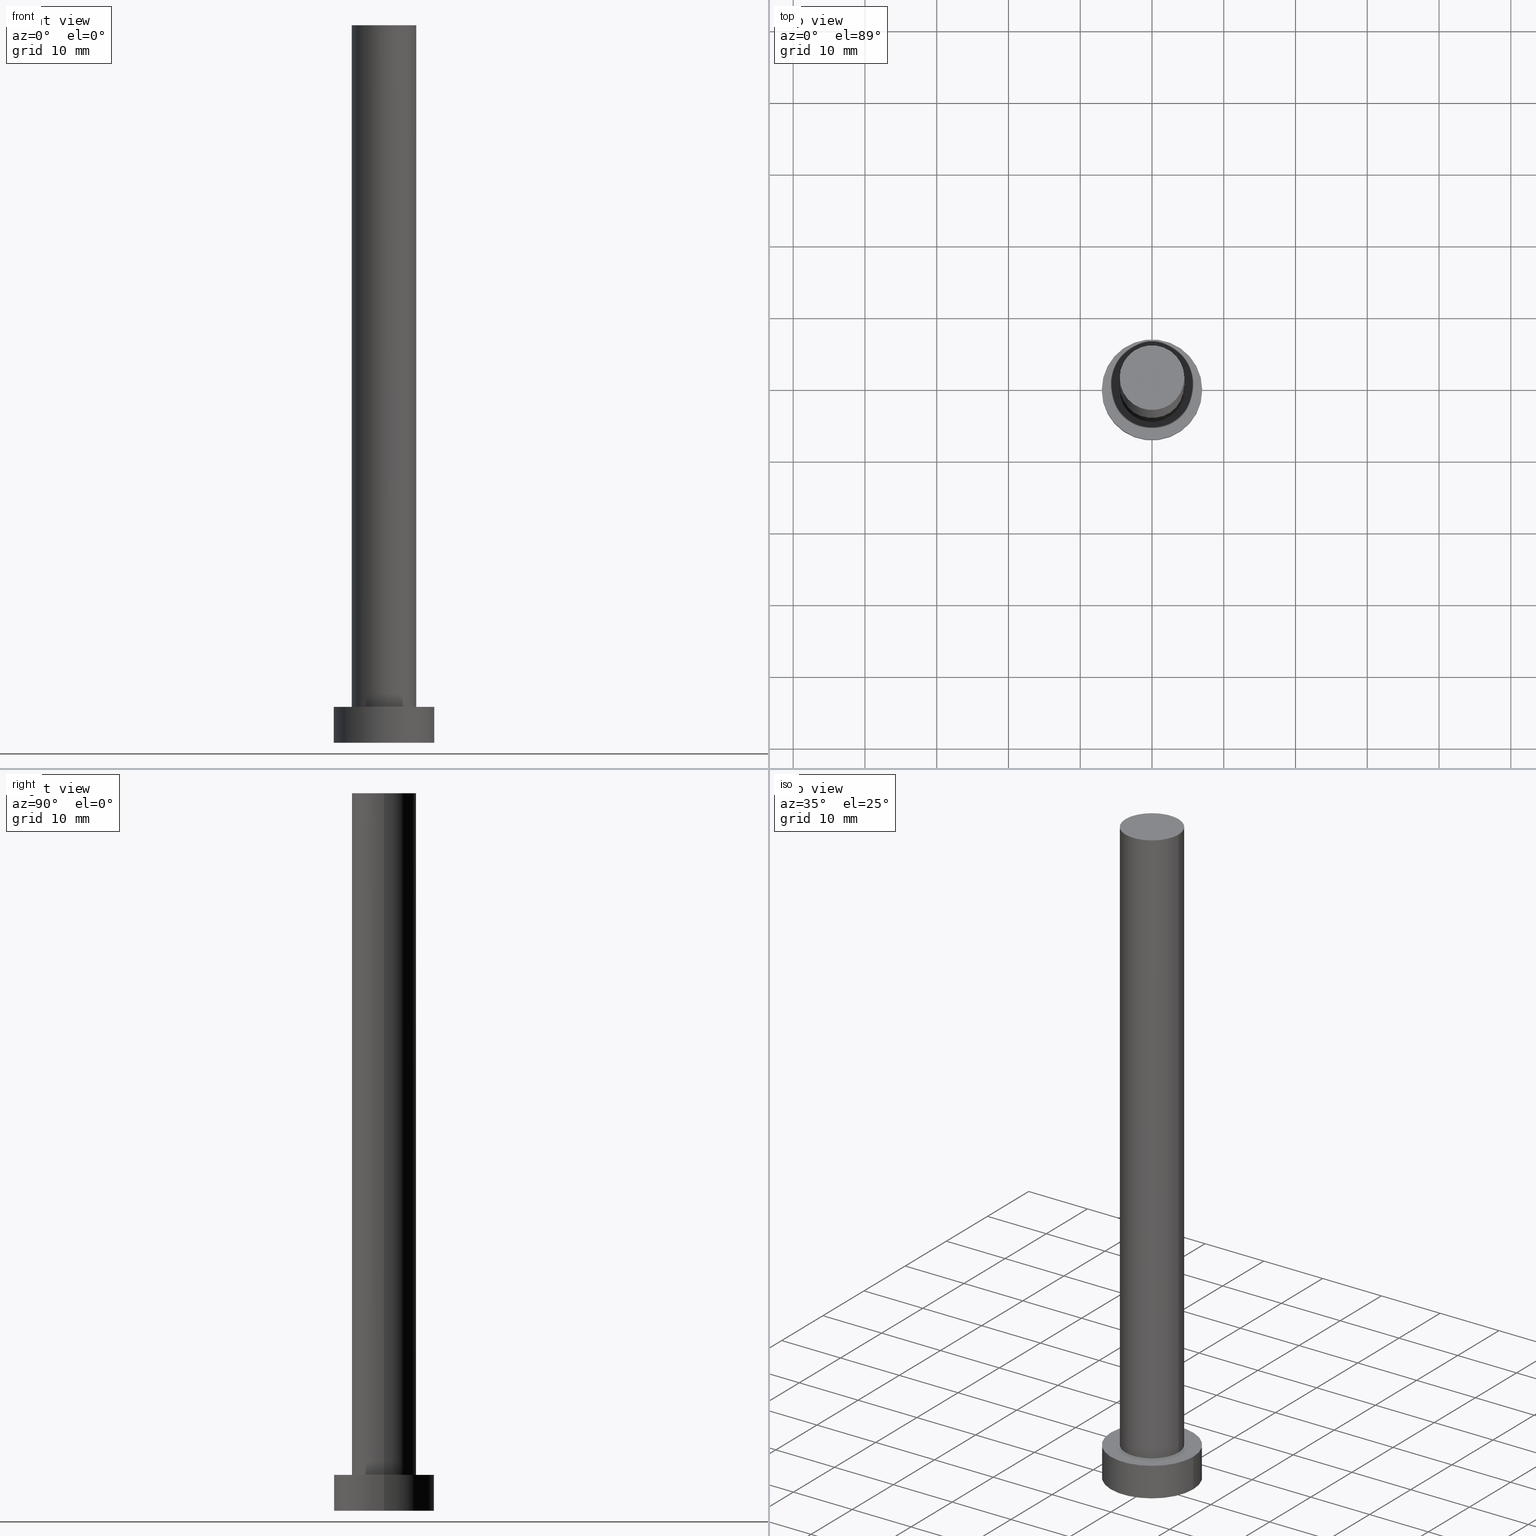
[diagram: canonical four-view strip — front | top / right | iso, engineering-drawing reading convention]
A machine part, canonical four-view strip (front | top / right | iso — engineering-drawing reading convention). The complete STEP part file that produces these views, byte-faithful:
ISO-10303-21;
HEADER;
FILE_DESCRIPTION (( 'STEP AP203' ),
    '1' );
FILE_NAME ('2dca.STEP',
    '2023-02-12T11:36:28',
    ( '' ),
    ( '' ),
    'SwSTEP 2.0',
    'SolidWorks 2019',
    '' );
FILE_SCHEMA (( 'CONFIG_CONTROL_DESIGN' ));
ENDSEC;

DATA;
#1 = APPLICATION_PROTOCOL_DEFINITION ( 'international standard', 'config_control_design', 1994, #168 ) ;
#2 = VERTEX_POINT ( 'NONE', #66 ) ;
#3 = APPLICATION_PROTOCOL_DEFINITION ( 'international standard', 'config_control_design', 1994, #189 ) ;
#4 = ORIENTED_EDGE ( 'NONE', *, *, #60, .T. ) ;
#5 = ORIENTED_EDGE ( 'NONE', *, *, #201, .F. ) ;
#6 = VERTEX_POINT ( 'NONE', #154 ) ;
#7 = DIRECTION ( 'NONE',  ( -0.000000000000000000, -0.000000000000000000, -1.000000000000000000 ) ) ;
#8 = ORIENTED_EDGE ( 'NONE', *, *, #60, .F. ) ;
#9 = CARTESIAN_POINT ( 'NONE',  ( -7.000000000000000000, 0.000000000000000000, 5.000000000000000000 ) ) ;
#10 = LOCAL_TIME ( 12, 36, 28.00000000000000000, #27 ) ;
#11 = APPROVAL_STATUS ( 'not_yet_approved' ) ;
#12 = MANIFOLD_SOLID_BREP ( 'P�idat vysunut�m3', #167 ) ;
#13 = PERSON_AND_ORGANIZATION_ROLE ( 'creator' ) ;
#14 = ORIENTED_EDGE ( 'NONE', *, *, #176, .F. ) ;
#15 = CARTESIAN_POINT ( 'NONE',  ( 7.000000000000000000, 8.572527594031473190E-16, 5.000000000000000000 ) ) ;
#16 = PERSON_AND_ORGANIZATION ( #19, #205 ) ;
#17 = ORIENTED_EDGE ( 'NONE', *, *, #106, .T. ) ;
#18 = CC_DESIGN_PERSON_AND_ORGANIZATION_ASSIGNMENT ( #93, #113, ( #67 ) ) ;
#19 = PERSON ( 'NEUR�EN�', 'NEUR�EN�', 'NEUR�EN�', ('NEUR�EN�'), ('NEUR�EN�'), ('NEUR�EN�') ) ;
#20 = ORIENTED_EDGE ( 'NONE', *, *, #254, .T. ) ;
#21 = CC_DESIGN_DATE_AND_TIME_ASSIGNMENT ( #212, #155, ( #152 ) ) ;
#22 = DIRECTION ( 'NONE',  ( 0.000000000000000000, 0.000000000000000000, 1.000000000000000000 ) ) ;
#23 = LOCAL_TIME ( 12, 36, 28.00000000000000000, #231 ) ;
#24 = CARTESIAN_POINT ( 'NONE',  ( 0.000000000000000000, 0.000000000000000000, 100.0000000000000000 ) ) ;
#25 = DIRECTION ( 'NONE',  ( 0.000000000000000000, 0.000000000000000000, 1.000000000000000000 ) ) ;
#26 = AXIS2_PLACEMENT_3D ( 'NONE', #56, #95, #28 ) ;
#27 = COORDINATED_UNIVERSAL_TIME_OFFSET ( 1, 0, .AHEAD. ) ;
#28 = DIRECTION ( 'NONE',  ( 1.000000000000000000, 0.000000000000000000, -0.000000000000000000 ) ) ;
#29 =( LENGTH_UNIT ( ) NAMED_UNIT ( * ) SI_UNIT ( .MILLI., .METRE. ) );
#30 = AXIS2_PLACEMENT_3D ( 'NONE', #59, #210, #248 ) ;
#31 = CYLINDRICAL_SURFACE ( 'NONE', #151, 4.500000000000000888 ) ;
#32 = CC_DESIGN_APPROVAL ( #139, ( #190 ) ) ;
#33 = ADVANCED_FACE ( 'NONE', ( #175 ), #226, .T. ) ;
#34 = DATE_AND_TIME ( #92, #10 ) ;
#35 = PERSON_AND_ORGANIZATION ( #19, #205 ) ;
#36 = DIRECTION ( 'NONE',  ( 0.000000000000000000, 0.000000000000000000, 1.000000000000000000 ) ) ;
#37 = FACE_OUTER_BOUND ( 'NONE', #219, .T. ) ;
#38 = VECTOR ( 'NONE', #121, 1000.000000000000000 ) ;
#39 = LINE ( 'NONE', #196, #213 ) ;
#40 = DIRECTION ( 'NONE',  ( -0.000000000000000000, -0.000000000000000000, -1.000000000000000000 ) ) ;
#41 = CIRCLE ( 'NONE', #193, 4.500000000000000888 ) ;
#42 = CC_DESIGN_SECURITY_CLASSIFICATION ( #67, ( #190 ) ) ;
#43 = DIRECTION ( 'NONE',  ( -0.000000000000000000, -0.000000000000000000, -1.000000000000000000 ) ) ;
#44 = CARTESIAN_POINT ( 'NONE',  ( 4.500000000000000888, 5.510910596163089556E-16, 100.0000000000000000 ) ) ;
#45 = CALENDAR_DATE ( 2023, 12, 2 ) ;
#46 = CARTESIAN_POINT ( 'NONE',  ( 4.500000000000000888, 5.510910596163089556E-16, 100.0000000000000000 ) ) ;
#47 = ADVANCED_BREP_SHAPE_REPRESENTATION ( '2dca', ( #12, #153 ), #123 ) ;
#48 = ORIENTED_EDGE ( 'NONE', *, *, #129, .F. ) ;
#49 = CARTESIAN_POINT ( 'NONE',  ( 0.000000000000000000, 0.000000000000000000, 5.000000000000000000 ) ) ;
#50 = AXIS2_PLACEMENT_3D ( 'NONE', #247, #36, #250 ) ;
#51 = CARTESIAN_POINT ( 'NONE',  ( -4.500000000000000888, 0.000000000000000000, 5.000000000000000000 ) ) ;
#52 = CIRCLE ( 'NONE', #220, 4.500000000000000888 ) ;
#53 = FACE_OUTER_BOUND ( 'NONE', #215, .T. ) ;
#54 = SHAPE_DEFINITION_REPRESENTATION ( #83, #47 ) ;
#55 = CC_DESIGN_PERSON_AND_ORGANIZATION_ASSIGNMENT ( #130, #128, ( #190 ) ) ;
#56 = CARTESIAN_POINT ( 'NONE',  ( 0.000000000000000000, 0.000000000000000000, 0.000000000000000000 ) ) ;
#57 = CARTESIAN_POINT ( 'NONE',  ( 0.000000000000000000, 0.000000000000000000, 5.000000000000000000 ) ) ;
#58 = VERTEX_POINT ( 'NONE', #15 ) ;
#59 = CARTESIAN_POINT ( 'NONE',  ( 0.000000000000000000, 0.000000000000000000, 100.0000000000000000 ) ) ;
#60 = EDGE_CURVE ( 'NONE', #6, #2, #160, .T. ) ;
#61 = AXIS2_PLACEMENT_3D ( 'NONE', #187, #157, #70 ) ;
#62 = CARTESIAN_POINT ( 'NONE',  ( -4.500000000000000888, 0.000000000000000000, 100.0000000000000000 ) ) ;
#63 = LINE ( 'NONE', #208, #144 ) ;
#64 = CC_DESIGN_PERSON_AND_ORGANIZATION_ASSIGNMENT ( #162, #13, ( #152 ) ) ;
#65 = AXIS2_PLACEMENT_3D ( 'NONE', #49, #222, #218 ) ;
#66 = CARTESIAN_POINT ( 'NONE',  ( 7.000000000000000000, 8.572527594031473190E-16, 0.000000000000000000 ) ) ;
#67 = SECURITY_CLASSIFICATION ( '', '', #94 ) ;
#68 = ORIENTED_EDGE ( 'NONE', *, *, #159, .T. ) ;
#69 = AXIS2_PLACEMENT_3D ( 'NONE', #91, #25, #127 ) ;
#70 = DIRECTION ( 'NONE',  ( 1.000000000000000000, 0.000000000000000000, -0.000000000000000000 ) ) ;
#71 = ORIENTED_EDGE ( 'NONE', *, *, #228, .F. ) ;
#72 = FACE_BOUND ( 'NONE', #182, .T. ) ;
#73 = CC_DESIGN_DATE_AND_TIME_ASSIGNMENT ( #221, #203, ( #67 ) ) ;
#74 = VECTOR ( 'NONE', #111, 1000.000000000000000 ) ;
#75 = CYLINDRICAL_SURFACE ( 'NONE', #87, 4.500000000000000888 ) ;
#76 = COORDINATED_UNIVERSAL_TIME_OFFSET ( 1, 0, .AHEAD. ) ;
#77 = EDGE_CURVE ( 'NONE', #58, #2, #63, .T. ) ;
#78 = APPROVAL_DATE_TIME ( #126, #100 ) ;
#79 = PERSON_AND_ORGANIZATION ( #19, #205 ) ;
#80 =( NAMED_UNIT ( * ) PLANE_ANGLE_UNIT ( ) SI_UNIT ( $, .RADIAN. ) );
#81 = CIRCLE ( 'NONE', #65, 7.000000000000000000 ) ;
#82 = CC_DESIGN_PERSON_AND_ORGANIZATION_ASSIGNMENT ( #79, #243, ( #190 ) ) ;
#83 = PRODUCT_DEFINITION_SHAPE ( 'NONE', 'NONE',  #152 ) ;
#84 = ADVANCED_FACE ( 'NONE', ( #37 ), #31, .T. ) ;
#85 = DIRECTION ( 'NONE',  ( 0.000000000000000000, 0.000000000000000000, 1.000000000000000000 ) ) ;
#86 = COORDINATED_UNIVERSAL_TIME_OFFSET ( 1, 0, .AHEAD. ) ;
#87 = AXIS2_PLACEMENT_3D ( 'NONE', #165, #7, #96 ) ;
#88 = APPROVAL_DATE_TIME ( #34, #125 ) ;
#89 = FACE_OUTER_BOUND ( 'NONE', #135, .T. ) ;
#90 = DIRECTION ( 'NONE',  ( 1.000000000000000000, 0.000000000000000000, 0.000000000000000000 ) ) ;
#91 = CARTESIAN_POINT ( 'NONE',  ( 0.000000000000000000, 0.000000000000000000, 5.000000000000000000 ) ) ;
#92 = CALENDAR_DATE ( 2023, 12, 2 ) ;
#93 = PERSON_AND_ORGANIZATION ( #19, #205 ) ;
#94 = SECURITY_CLASSIFICATION_LEVEL ( 'unclassified' ) ;
#95 = DIRECTION ( 'NONE',  ( 0.000000000000000000, 0.000000000000000000, 1.000000000000000000 ) ) ;
#96 = DIRECTION ( 'NONE',  ( -1.000000000000000000, 0.000000000000000000, 0.000000000000000000 ) ) ;
#97 = PERSON_AND_ORGANIZATION ( #19, #205 ) ;
#98 = CIRCLE ( 'NONE', #69, 7.000000000000000000 ) ;
#99 = CALENDAR_DATE ( 2023, 12, 2 ) ;
#100 = APPROVAL ( #148, 'NEUR�EN�' ) ;
#101 = APPROVAL_PERSON_ORGANIZATION ( #141, #100, #164 ) ;
#102 = ORIENTED_EDGE ( 'NONE', *, *, #159, .F. ) ;
#103 = EDGE_LOOP ( 'NONE', ( #138, #114, #143, #170 ) ) ;
#104 = DIRECTION ( 'NONE',  ( 1.000000000000000000, 0.000000000000000000, 0.000000000000000000 ) ) ;
#105 = DIRECTION ( 'NONE',  ( 1.000000000000000000, 0.000000000000000000, 0.000000000000000000 ) ) ;
#106 = EDGE_CURVE ( 'NONE', #183, #6, #209, .T. ) ;
#107 = AXIS2_PLACEMENT_3D ( 'NONE', #202, #186, #110 ) ;
#108 = DIRECTION ( 'NONE',  ( 0.000000000000000000, 0.000000000000000000, 1.000000000000000000 ) ) ;
#109 = PLANE ( 'NONE',  #61 ) ;
#110 = DIRECTION ( 'NONE',  ( -1.000000000000000000, 0.000000000000000000, 0.000000000000000000 ) ) ;
#111 = DIRECTION ( 'NONE',  ( -0.000000000000000000, -0.000000000000000000, -1.000000000000000000 ) ) ;
#112 = EDGE_LOOP ( 'NONE', ( #198, #158 ) ) ;
#113 = PERSON_AND_ORGANIZATION_ROLE ( 'classification_officer' ) ;
#114 = ORIENTED_EDGE ( 'NONE', *, *, #254, .F. ) ;
#115 = LOCAL_TIME ( 12, 36, 28.00000000000000000, #235 ) ;
#116 = DESIGN_CONTEXT ( 'detailed design', #168, 'design' ) ;
#117 = ADVANCED_FACE ( 'NONE', ( #53 ), #223, .F. ) ;
#118 = DIRECTION ( 'NONE',  ( 1.000000000000000000, 0.000000000000000000, 0.000000000000000000 ) ) ;
#119 = ADVANCED_FACE ( 'NONE', ( #242 ), #241, .T. ) ;
#120 = AXIS2_PLACEMENT_3D ( 'NONE', #197, #22, #105 ) ;
#121 = DIRECTION ( 'NONE',  ( -0.000000000000000000, -0.000000000000000000, -1.000000000000000000 ) ) ;
#122 = EDGE_LOOP ( 'NONE', ( #20, #68 ) ) ;
#123 =( GEOMETRIC_REPRESENTATION_CONTEXT ( 3 ) GLOBAL_UNCERTAINTY_ASSIGNED_CONTEXT ( ( #244 ) ) GLOBAL_UNIT_ASSIGNED_CONTEXT ( ( #29, #80, #224 ) ) REPRESENTATION_CONTEXT ( 'NONE', 'WORKASPACE' ) );
#124 = ORIENTED_EDGE ( 'NONE', *, *, #129, .T. ) ;
#125 = APPROVAL ( #11, 'NEUR�EN�' ) ;
#126 = DATE_AND_TIME ( #171, #115 ) ;
#127 = DIRECTION ( 'NONE',  ( 1.000000000000000000, 0.000000000000000000, 0.000000000000000000 ) ) ;
#128 = PERSON_AND_ORGANIZATION_ROLE ( 'design_supplier' ) ;
#129 = EDGE_CURVE ( 'NONE', #240, #253, #41, .T. ) ;
#130 = PERSON_AND_ORGANIZATION ( #19, #205 ) ;
#131 = CARTESIAN_POINT ( 'NONE',  ( 0.000000000000000000, 0.000000000000000000, 0.000000000000000000 ) ) ;
#132 = PERSON_AND_ORGANIZATION_ROLE ( 'design_owner' ) ;
#133 = APPROVAL_PERSON_ORGANIZATION ( #35, #139, #249 ) ;
#134 = DIRECTION ( 'NONE',  ( -1.000000000000000000, 0.000000000000000000, 0.000000000000000000 ) ) ;
#135 = EDGE_LOOP ( 'NONE', ( #71, #246, #156, #252 ) ) ;
#136 = DIRECTION ( 'NONE',  ( -0.000000000000000000, -0.000000000000000000, -1.000000000000000000 ) ) ;
#137 = CIRCLE ( 'NONE', #50, 4.500000000000000888 ) ;
#138 = ORIENTED_EDGE ( 'NONE', *, *, #191, .F. ) ;
#139 = APPROVAL ( #180, 'NEUR�EN�' ) ;
#140 = ORIENTED_EDGE ( 'NONE', *, *, #191, .T. ) ;
#141 = PERSON_AND_ORGANIZATION ( #19, #205 ) ;
#142 = FACE_OUTER_BOUND ( 'NONE', #103, .T. ) ;
#143 = ORIENTED_EDGE ( 'NONE', *, *, #166, .T. ) ;
#144 = VECTOR ( 'NONE', #136, 1000.000000000000000 ) ;
#145 = CIRCLE ( 'NONE', #217, 7.000000000000000000 ) ;
#146 = CALENDAR_DATE ( 2023, 12, 2 ) ;
#147 = VERTEX_POINT ( 'NONE', #62 ) ;
#148 = APPROVAL_STATUS ( 'not_yet_approved' ) ;
#149 = DATE_AND_TIME ( #45, #194 ) ;
#150 = CARTESIAN_POINT ( 'NONE',  ( 0.000000000000000000, 0.000000000000000000, 100.0000000000000000 ) ) ;
#151 = AXIS2_PLACEMENT_3D ( 'NONE', #150, #227, #134 ) ;
#152 = PRODUCT_DEFINITION ( 'NEZN�M�', '', #190, #116 ) ;
#153 = AXIS2_PLACEMENT_3D ( 'NONE', #188, #108, #90 ) ;
#154 = CARTESIAN_POINT ( 'NONE',  ( -7.000000000000000000, 0.000000000000000000, 0.000000000000000000 ) ) ;
#155 = DATE_TIME_ROLE ( 'creation_date' ) ;
#156 = ORIENTED_EDGE ( 'NONE', *, *, #201, .T. ) ;
#157 = DIRECTION ( 'NONE',  ( 0.000000000000000000, 0.000000000000000000, 1.000000000000000000 ) ) ;
#158 = ORIENTED_EDGE ( 'NONE', *, *, #228, .T. ) ;
#159 = EDGE_CURVE ( 'NONE', #179, #147, #137, .T. ) ;
#160 = CIRCLE ( 'NONE', #195, 7.000000000000000000 ) ;
#161 = LOCAL_TIME ( 12, 36, 28.00000000000000000, #76 ) ;
#162 = PERSON_AND_ORGANIZATION ( #19, #205 ) ;
#163 = CARTESIAN_POINT ( 'NONE',  ( -7.000000000000000000, 0.000000000000000000, 5.000000000000000000 ) ) ;
#164 = APPROVAL_ROLE ( '' ) ;
#165 = CARTESIAN_POINT ( 'NONE',  ( 0.000000000000000000, 0.000000000000000000, 100.0000000000000000 ) ) ;
#166 = EDGE_CURVE ( 'NONE', #147, #253, #39, .T. ) ;
#167 = CLOSED_SHELL ( 'NONE', ( #84, #172, #119, #216, #117, #239, #33 ) ) ;
#168 = APPLICATION_CONTEXT ( 'configuration controlled 3d designs of mechanical parts and assemblies' ) ;
#169 = DIRECTION ( 'NONE',  ( 1.000000000000000000, 0.000000000000000000, 0.000000000000000000 ) ) ;
#170 = ORIENTED_EDGE ( 'NONE', *, *, #181, .T. ) ;
#171 = CALENDAR_DATE ( 2023, 12, 2 ) ;
#172 = ADVANCED_FACE ( 'NONE', ( #89 ), #255, .T. ) ;
#173 = APPROVAL_DATE_TIME ( #149, #139 ) ;
#174 = DIRECTION ( 'NONE',  ( -1.000000000000000000, 0.000000000000000000, 0.000000000000000000 ) ) ;
#175 = FACE_OUTER_BOUND ( 'NONE', #122, .T. ) ;
#176 = EDGE_CURVE ( 'NONE', #183, #58, #81, .T. ) ;
#177 = CARTESIAN_POINT ( 'NONE',  ( 0.000000000000000000, 0.000000000000000000, 5.000000000000000000 ) ) ;
#178 = APPROVAL_PERSON_ORGANIZATION ( #97, #125, #192 ) ;
#179 = VERTEX_POINT ( 'NONE', #44 ) ;
#180 = APPROVAL_STATUS ( 'not_yet_approved' ) ;
#181 = EDGE_CURVE ( 'NONE', #253, #240, #230, .T. ) ;
#182 = EDGE_LOOP ( 'NONE', ( #236, #48 ) ) ;
#183 = VERTEX_POINT ( 'NONE', #163 ) ;
#184 = FACE_OUTER_BOUND ( 'NONE', #112, .T. ) ;
#185 = CC_DESIGN_APPROVAL ( #125, ( #152 ) ) ;
#186 = DIRECTION ( 'NONE',  ( -0.000000000000000000, -0.000000000000000000, -1.000000000000000000 ) ) ;
#187 = CARTESIAN_POINT ( 'NONE',  ( 0.000000000000000000, 0.000000000000000000, 5.000000000000000000 ) ) ;
#188 = CARTESIAN_POINT ( 'NONE',  ( 0.000000000000000000, 0.000000000000000000, 0.000000000000000000 ) ) ;
#189 = APPLICATION_CONTEXT ( 'configuration controlled 3d designs of mechanical parts and assemblies' ) ;
#190 = PRODUCT_DEFINITION_FORMATION_WITH_SPECIFIED_SOURCE ( 'LIBOVOLN�', '', #251, .NOT_KNOWN. ) ;
#191 = EDGE_CURVE ( 'NONE', #179, #240, #233, .T. ) ;
#192 = APPROVAL_ROLE ( '' ) ;
#193 = AXIS2_PLACEMENT_3D ( 'NONE', #177, #214, #118 ) ;
#194 = LOCAL_TIME ( 12, 36, 28.00000000000000000, #86 ) ;
#195 = AXIS2_PLACEMENT_3D ( 'NONE', #131, #85, #229 ) ;
#196 = CARTESIAN_POINT ( 'NONE',  ( -4.500000000000000888, 0.000000000000000000, 100.0000000000000000 ) ) ;
#197 = CARTESIAN_POINT ( 'NONE',  ( 0.000000000000000000, 0.000000000000000000, 5.000000000000000000 ) ) ;
#198 = ORIENTED_EDGE ( 'NONE', *, *, #176, .T. ) ;
#199 = DIRECTION ( 'NONE',  ( 0.000000000000000000, 0.000000000000000000, 1.000000000000000000 ) ) ;
#200 = DIRECTION ( 'NONE',  ( 0.000000000000000000, 0.000000000000000000, 1.000000000000000000 ) ) ;
#201 = EDGE_CURVE ( 'NONE', #2, #6, #145, .T. ) ;
#202 = CARTESIAN_POINT ( 'NONE',  ( 0.000000000000000000, 0.000000000000000000, 5.000000000000000000 ) ) ;
#203 = DATE_TIME_ROLE ( 'classification_date' ) ;
#204 = AXIS2_PLACEMENT_3D ( 'NONE', #57, #40, #174 ) ;
#205 = ORGANIZATION ( 'NEUR�EN�', 'NEUR�EN�', '' ) ;
#206 = CARTESIAN_POINT ( 'NONE',  ( 4.500000000000000888, 5.510910596163089556E-16, 5.000000000000000000 ) ) ;
#207 = CC_DESIGN_PERSON_AND_ORGANIZATION_ASSIGNMENT ( #16, #132, ( #251 ) ) ;
#208 = CARTESIAN_POINT ( 'NONE',  ( 7.000000000000000000, 8.572527594031473190E-16, 5.000000000000000000 ) ) ;
#209 = LINE ( 'NONE', #9, #74 ) ;
#210 = DIRECTION ( 'NONE',  ( 0.000000000000000000, 0.000000000000000000, 1.000000000000000000 ) ) ;
#211 = PRODUCT_RELATED_PRODUCT_CATEGORY ( 'detail', '', ( #251 ) ) ;
#212 = DATE_AND_TIME ( #99, #23 ) ;
#213 = VECTOR ( 'NONE', #43, 1000.000000000000000 ) ;
#214 = DIRECTION ( 'NONE',  ( 0.000000000000000000, 0.000000000000000000, 1.000000000000000000 ) ) ;
#215 = EDGE_LOOP ( 'NONE', ( #8, #5 ) ) ;
#216 = ADVANCED_FACE ( 'NONE', ( #72, #184 ), #109, .T. ) ;
#217 = AXIS2_PLACEMENT_3D ( 'NONE', #237, #199, #104 ) ;
#218 = DIRECTION ( 'NONE',  ( 1.000000000000000000, 0.000000000000000000, 0.000000000000000000 ) ) ;
#219 = EDGE_LOOP ( 'NONE', ( #102, #140, #124, #238 ) ) ;
#220 = AXIS2_PLACEMENT_3D ( 'NONE', #24, #200, #169 ) ;
#221 = DATE_AND_TIME ( #146, #161 ) ;
#222 = DIRECTION ( 'NONE',  ( 0.000000000000000000, 0.000000000000000000, 1.000000000000000000 ) ) ;
#223 = PLANE ( 'NONE',  #26 ) ;
#224 =( NAMED_UNIT ( * ) SI_UNIT ( $, .STERADIAN. ) SOLID_ANGLE_UNIT ( ) );
#225 = ORIENTED_EDGE ( 'NONE', *, *, #77, .F. ) ;
#226 = PLANE ( 'NONE',  #30 ) ;
#227 = DIRECTION ( 'NONE',  ( -0.000000000000000000, -0.000000000000000000, -1.000000000000000000 ) ) ;
#228 = EDGE_CURVE ( 'NONE', #58, #183, #98, .T. ) ;
#229 = DIRECTION ( 'NONE',  ( 1.000000000000000000, 0.000000000000000000, 0.000000000000000000 ) ) ;
#230 = CIRCLE ( 'NONE', #120, 4.500000000000000888 ) ;
#231 = COORDINATED_UNIVERSAL_TIME_OFFSET ( 1, 0, .AHEAD. ) ;
#232 = CC_DESIGN_APPROVAL ( #100, ( #67 ) ) ;
#233 = LINE ( 'NONE', #46, #38 ) ;
#234 = EDGE_LOOP ( 'NONE', ( #225, #14, #17, #4 ) ) ;
#235 = COORDINATED_UNIVERSAL_TIME_OFFSET ( 1, 0, .AHEAD. ) ;
#236 = ORIENTED_EDGE ( 'NONE', *, *, #181, .F. ) ;
#237 = CARTESIAN_POINT ( 'NONE',  ( 0.000000000000000000, 0.000000000000000000, 0.000000000000000000 ) ) ;
#238 = ORIENTED_EDGE ( 'NONE', *, *, #166, .F. ) ;
#239 = ADVANCED_FACE ( 'NONE', ( #142 ), #75, .T. ) ;
#240 = VERTEX_POINT ( 'NONE', #206 ) ;
#241 = CYLINDRICAL_SURFACE ( 'NONE', #204, 7.000000000000000000 ) ;
#242 = FACE_OUTER_BOUND ( 'NONE', #234, .T. ) ;
#243 = PERSON_AND_ORGANIZATION_ROLE ( 'creator' ) ;
#244 = UNCERTAINTY_MEASURE_WITH_UNIT (LENGTH_MEASURE( 1.000000000000000082E-05 ), #29, 'distance_accuracy_value', 'NONE');
#245 = MECHANICAL_CONTEXT ( 'NONE', #189, 'mechanical' ) ;
#246 = ORIENTED_EDGE ( 'NONE', *, *, #77, .T. ) ;
#247 = CARTESIAN_POINT ( 'NONE',  ( 0.000000000000000000, 0.000000000000000000, 100.0000000000000000 ) ) ;
#248 = DIRECTION ( 'NONE',  ( 1.000000000000000000, 0.000000000000000000, -0.000000000000000000 ) ) ;
#249 = APPROVAL_ROLE ( '' ) ;
#250 = DIRECTION ( 'NONE',  ( 1.000000000000000000, 0.000000000000000000, 0.000000000000000000 ) ) ;
#251 = PRODUCT ( '2dca', '2dca', '', ( #245 ) ) ;
#252 = ORIENTED_EDGE ( 'NONE', *, *, #106, .F. ) ;
#253 = VERTEX_POINT ( 'NONE', #51 ) ;
#254 = EDGE_CURVE ( 'NONE', #147, #179, #52, .T. ) ;
#255 = CYLINDRICAL_SURFACE ( 'NONE', #107, 7.000000000000000000 ) ;
ENDSEC;
END-ISO-10303-21;
